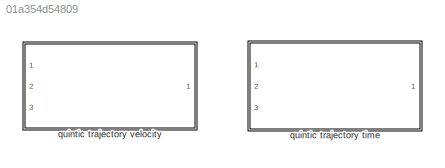
MODEL slx_01a354d54809
KIND library
CONFIG AbsTol = auto
CONFIG EnableMultiTasking = off
CONFIG FixedStep = auto
CONFIG MaxStep = auto
CONFIG MinStep = auto
CONFIG RelTol = 1e-3
CONFIG SampleTimeConstraint = Unconstrained
CONFIG SolverName = VariableStepAuto
CONFIG StartTime = 0.0
CONFIG StopTime = 10.0
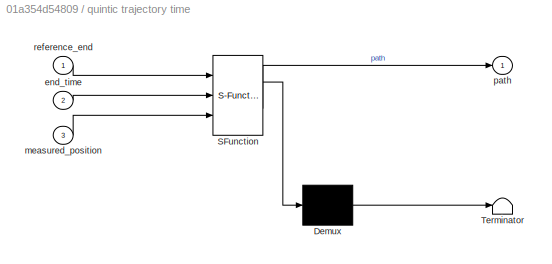
BLOCK [SubSystem] quintic trajectory time
  ErrorFcn = Stateflow.Translate.translate
  PermitHierarchicalResolution = ExplicitOnly
  Ports = [3, 1]
  RequestExecContextInheritance = off
  SFBlockType = MATLAB Function
  TreatAsAtomicUnit = on
BLOCK [Demux] quintic trajectory time/ Demux 
  Outputs = 1
  Ports = [1, 1]
BLOCK [S-Function] quintic trajectory time/ SFunction 
  EnableBusSupport = off
  FunctionName = sf_sfun
  Parameters = Ts
  PortCounts = [3 2]
  Ports = [3, 2]
  SFcnIsStateOwnerBlock = off
  SFunctionDeploymentMode = off
  Tag = Stateflow S-Function 8
BLOCK [Terminator] quintic trajectory time/ Terminator 
BLOCK [Inport] quintic trajectory time/end_time
  Port = 2
BLOCK [Inport] quintic trajectory time/measured_position
  Port = 3
BLOCK [Outport] quintic trajectory time/path
BLOCK [Inport] quintic trajectory time/reference_end
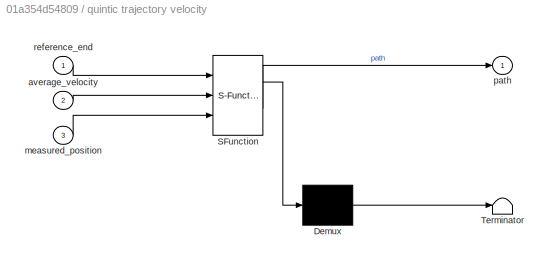
BLOCK [SubSystem] quintic trajectory velocity
  ErrorFcn = Stateflow.Translate.translate
  PermitHierarchicalResolution = ExplicitOnly
  Ports = [3, 1]
  RequestExecContextInheritance = off
  SFBlockType = MATLAB Function
  TreatAsAtomicUnit = on
BLOCK [Demux] quintic trajectory velocity/ Demux 
  Outputs = 1
  Ports = [1, 1]
BLOCK [S-Function] quintic trajectory velocity/ SFunction 
  EnableBusSupport = off
  FunctionName = sf_sfun
  Parameters = Ts
  PortCounts = [3 2]
  Ports = [3, 2]
  SFcnIsStateOwnerBlock = off
  SFunctionDeploymentMode = off
  Tag = Stateflow S-Function 2
BLOCK [Terminator] quintic trajectory velocity/ Terminator 
BLOCK [Inport] quintic trajectory velocity/average_velocity
  Port = 2
BLOCK [Inport] quintic trajectory velocity/measured_position
  Port = 3
BLOCK [Outport] quintic trajectory velocity/path
BLOCK [Inport] quintic trajectory velocity/reference_end
CHART quintic trajectory velocity states=1 transitions=1
  STATE_LABEL 'eML_blk_kernel()'
  STATE_LABEL 'SCRIPT:\nfunction path = Quintic_Polynomial_Trajectory_Velocity(reference_end, average_velocity, Ts, measured_position)\n%% Quintic_Polynomial_Trajectory(reference_end, average_velocity)\n% This function outputs a quintic polynomial trajectory over time in \n% Simulink given the end reference and average velocity. The starting \n% velocity and acceleration are set to zero.\n%\n% Input Arguments\n% referen...<+2092ch>'
CHART quintic trajectory time states=1 transitions=1
  STATE_LABEL 'eML_blk_kernel()'
  STATE_LABEL 'SCRIPT:\nfunction path = Quintic_Polynomial_Trajectory_Time(reference_end, end_time, Ts, measured_position)\n%% Quintic_Polynomial_Trajectory(reference_end, average_velocity)\n% This function outputs a quintic polynomial trajectory over time in \n% Simulink given the end reference and average velocity. The starting \n% velocity and acceleration are set to zero.\n%\n% Input Arguments\n% reference_end = des...<+2068ch>'
CHART  states=0 transitions=0
CHART  states=0 transitions=0
